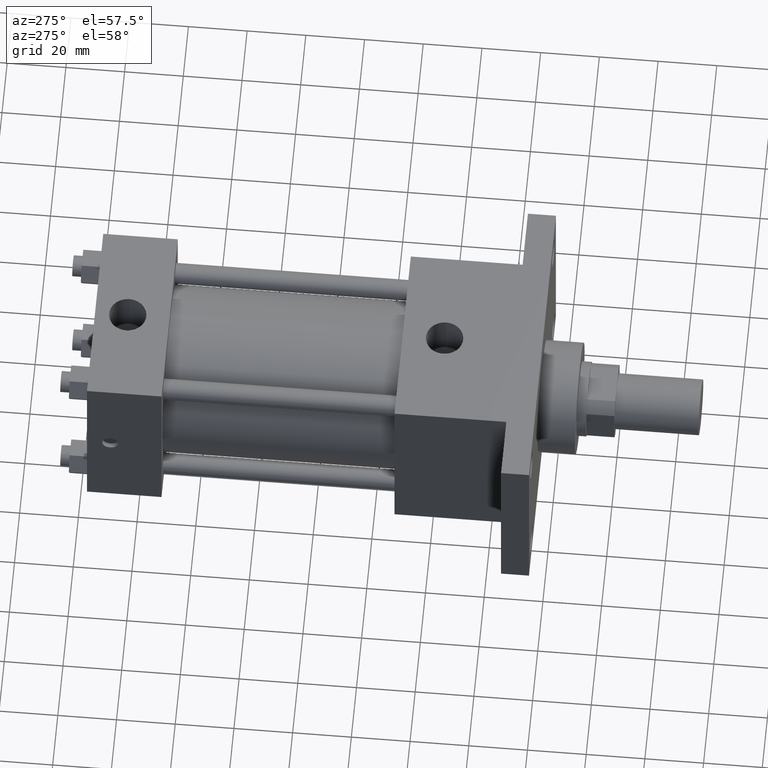
[diagram: clean part render]
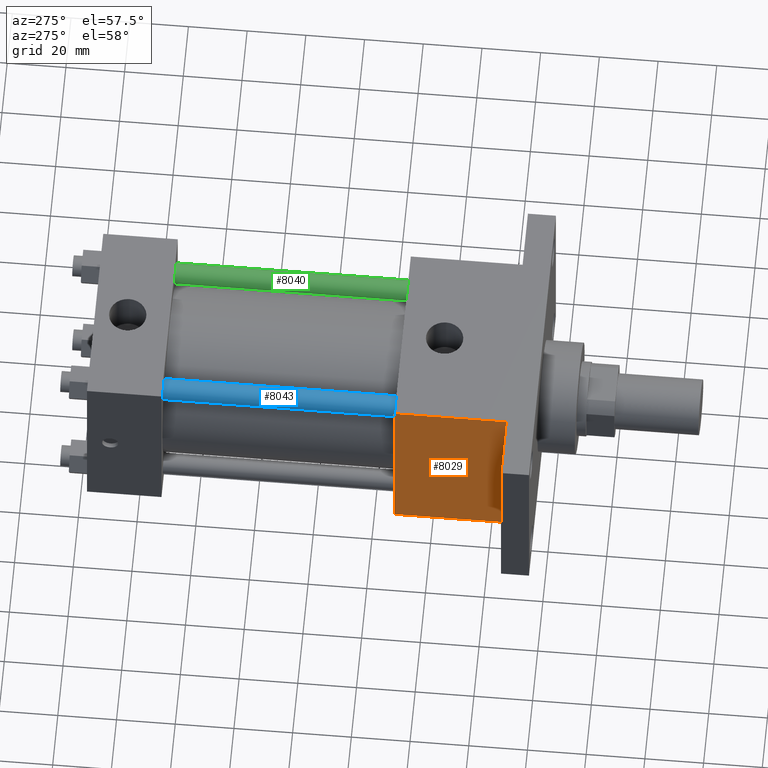
[diagram: same view with three faces highlighted in distinct colors, each labeled with its STEP entity id]
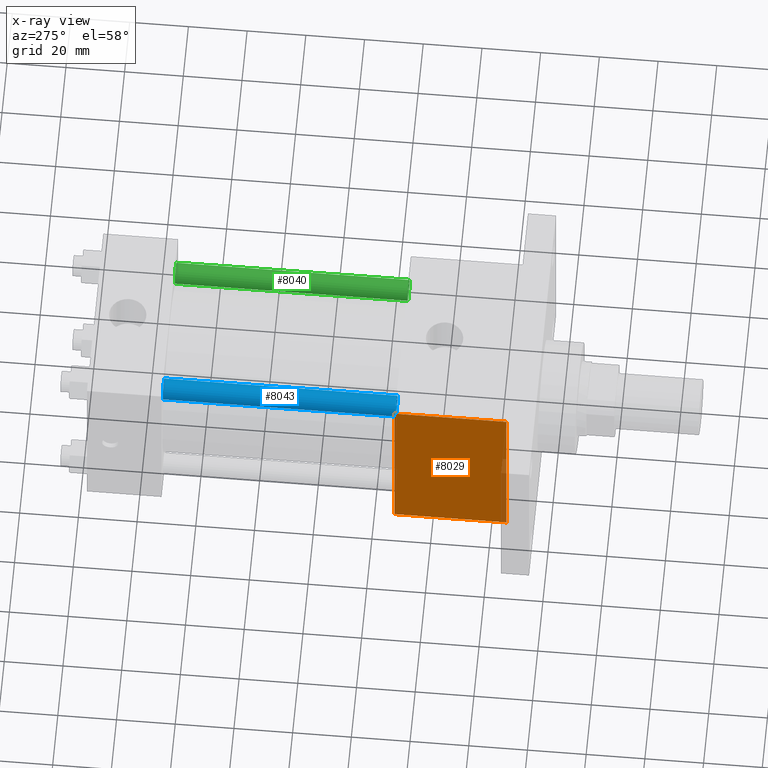
[diagram: x-ray of the same camera — body ghosted, the three highlighted faces saturated]
A machine part, auxiliary view with three faces highlighted in distinct colors.
The next image is the same camera in x-ray (body ghosted, the three faces saturated) — at least one of them is partly hidden behind the body in this view.
Their STEP definitions:

[orange] entity #8029 — the highlighted planar face has unit normal (-1, 0, 0).
#550=VERTEX_POINT('',#551);
#551=CARTESIAN_POINT('',(-3.175000000E+001,3.492500000E+001,-3.175000000E+001));
#552=EDGE_CURVE('',#557,#550,#553,.T.);
#553=LINE('',#554,#555);
#554=CARTESIAN_POINT('',(-3.175000000E+001,7.302500000E+001,-3.175000000E+001));
#555=VECTOR('',#556,1.0E+000);
#556=DIRECTION('',(0.0E+000,-1.0E+000,0.0E+000));
#557=VERTEX_POINT('',#558);
#558=CARTESIAN_POINT('',(-3.175000000E+001,7.302500000E+001,-3.175000000E+001));
#646=VERTEX_POINT('',#647);
#647=CARTESIAN_POINT('',(-3.175000000E+001,7.302500000E+001,3.175000000E+001));
#648=EDGE_CURVE('',#646,#653,#649,.T.);
#649=LINE('',#650,#651);
#650=CARTESIAN_POINT('',(-3.175000000E+001,7.302500000E+001,3.175000000E+001));
#651=VECTOR('',#652,1.0E+000);
#652=DIRECTION('',(0.0E+000,-1.0E+000,0.0E+000));
#653=VERTEX_POINT('',#654);
#654=CARTESIAN_POINT('',(-3.175000000E+001,3.492500000E+001,3.175000000E+001));
#719=EDGE_CURVE('',#653,#550,#720,.T.);
#720=LINE('',#721,#722);
#721=CARTESIAN_POINT('',(-3.175000000E+001,3.492500000E+001,3.175000000E+001));
#722=VECTOR('',#723,1.0E+000);
#723=DIRECTION('',(0.0E+000,0.0E+000,-1.0E+000));
#851=EDGE_CURVE('',#646,#557,#852,.T.);
#852=LINE('',#853,#854);
#853=CARTESIAN_POINT('',(-3.175000000E+001,7.302500000E+001,3.175000000E+001));
#854=VECTOR('',#855,1.0E+000);
#855=DIRECTION('',(0.0E+000,0.0E+000,-1.0E+000));
#902=FACE_OUTER_BOUND('',#904,.T.);
#903=FACE_BOUND('',#905,.T.);
#904=EDGE_LOOP('',(#906,#907,#908,#909));
#905=EDGE_LOOP('',(#910));
#906=ORIENTED_EDGE('',*,*,#851,.T.);
#907=ORIENTED_EDGE('',*,*,#552,.T.);
#908=ORIENTED_EDGE('',*,*,#719,.F.);
#909=ORIENTED_EDGE('',*,*,#648,.F.);
#910=ORIENTED_EDGE('',*,*,#911,.T.);
#911=EDGE_CURVE('',#917,#917,#912,.T.);
#912=CIRCLE('',#913,2.778125000E+000);
#913=AXIS2_PLACEMENT_3D('',#914,#915,#916);
#914=CARTESIAN_POINT('',(-3.175000000E+001,5.397500000E+001,0.000000000E+000));
#915=DIRECTION('',(1.0E+000,0.0E+000,0.0E+000));
#916=DIRECTION('',(0.0E+000,-1.0E+000,0.0E+000));
#917=VERTEX_POINT('',#918);
#918=CARTESIAN_POINT('',(-3.175000000E+001,5.119687500E+001,0.000000000E+000));
#919=PLANE('',#920);
#920=AXIS2_PLACEMENT_3D('',#921,#922,#923);
#921=CARTESIAN_POINT('',(-3.175000000E+001,7.302500000E+001,3.175000000E+001));
#922=DIRECTION('',(-1.0E+000,0.0E+000,0.0E+000));
#923=DIRECTION('',(0.0E+000,0.0E+000,1.0E+000));
#8029=ADVANCED_FACE('',(#902,#903),#919,.T.);

[blue] entity #8043 — the highlighted cylindrical surface (bore or boss wall) has radius 3.5687 mm, axis along (0, -1, 0).
#862=EDGE_CURVE('',#868,#868,#863,.T.);
#863=CIRCLE('',#864,3.568700000E+000);
#864=AXIS2_PLACEMENT_3D('',#865,#866,#867);
#865=CARTESIAN_POINT('',(-2.336800000E+001,7.302500000E+001,2.336800000E+001));
#866=DIRECTION('',(0.0E+000,1.0E+000,0.0E+000));
#867=DIRECTION('',(1.0E+000,0.0E+000,0.0E+000));
#868=VERTEX_POINT('',#869);
#869=CARTESIAN_POINT('',(-1.979930000E+001,7.302500000E+001,2.336800000E+001));
#1130=FACE_OUTER_BOUND('',#1132,.T.);
#1131=FACE_BOUND('',#1133,.T.);
#1132=EDGE_LOOP('',(#1134));
#1133=EDGE_LOOP('',(#1135));
#1134=ORIENTED_EDGE('',*,*,#1189,.F.);
#1135=ORIENTED_EDGE('',*,*,#862,.T.);
#1136=CYLINDRICAL_SURFACE('',#1137,3.568700000E+000);
#1137=AXIS2_PLACEMENT_3D('',#1138,#1139,#1140);
#1138=CARTESIAN_POINT('',(-2.336800000E+001,1.524000000E+002,2.336800000E+001));
#1139=DIRECTION('',(0.0E+000,-1.0E+000,0.0E+000));
#1140=DIRECTION('',(0.0E+000,0.0E+000,-1.0E+000));
#1189=EDGE_CURVE('',#1195,#1195,#1190,.T.);
#1190=CIRCLE('',#1191,3.568700000E+000);
#1191=AXIS2_PLACEMENT_3D('',#1192,#1193,#1194);
#1192=CARTESIAN_POINT('',(-2.336800000E+001,1.524000000E+002,2.336800000E+001));
#1193=DIRECTION('',(0.0E+000,1.0E+000,0.0E+000));
#1194=DIRECTION('',(1.0E+000,0.0E+000,0.0E+000));
#1195=VERTEX_POINT('',#1196);
#1196=CARTESIAN_POINT('',(-1.979930000E+001,1.524000000E+002,2.336800000E+001));
#8043=ADVANCED_FACE('',(#1130,#1131),#1136,.T.);

[green] entity #8040 — the highlighted cylindrical surface (bore or boss wall) has radius 3.5687 mm, axis along (0, 1, 0).
#889=EDGE_CURVE('',#895,#895,#890,.T.);
#890=CIRCLE('',#891,3.568700000E+000);
#891=AXIS2_PLACEMENT_3D('',#892,#893,#894);
#892=CARTESIAN_POINT('',(2.336800000E+001,7.302500000E+001,2.336800000E+001));
#893=DIRECTION('',(0.0E+000,-1.0E+000,0.0E+000));
#894=DIRECTION('',(-1.0E+000,0.0E+000,0.0E+000));
#895=VERTEX_POINT('',#896);
#896=CARTESIAN_POINT('',(1.979930000E+001,7.302500000E+001,2.336800000E+001));
#1097=FACE_OUTER_BOUND('',#1099,.T.);
#1098=FACE_BOUND('',#1100,.T.);
#1099=EDGE_LOOP('',(#1101));
#1100=EDGE_LOOP('',(#1102));
#1101=ORIENTED_EDGE('',*,*,#889,.F.);
#1102=ORIENTED_EDGE('',*,*,#1149,.T.);
#1103=CYLINDRICAL_SURFACE('',#1104,3.568700000E+000);
#1104=AXIS2_PLACEMENT_3D('',#1105,#1106,#1107);
#1105=CARTESIAN_POINT('',(2.336800000E+001,7.302500000E+001,2.336800000E+001));
#1106=DIRECTION('',(0.0E+000,1.0E+000,0.0E+000));
#1107=DIRECTION('',(0.0E+000,0.0E+000,-1.0E+000));
#1149=EDGE_CURVE('',#1155,#1155,#1150,.T.);
#1150=CIRCLE('',#1151,3.568700000E+000);
#1151=AXIS2_PLACEMENT_3D('',#1152,#1153,#1154);
#1152=CARTESIAN_POINT('',(2.336800000E+001,1.524000000E+002,2.336800000E+001));
#1153=DIRECTION('',(0.0E+000,-1.0E+000,0.0E+000));
#1154=DIRECTION('',(-1.0E+000,0.0E+000,0.0E+000));
#1155=VERTEX_POINT('',#1156);
#1156=CARTESIAN_POINT('',(1.979930000E+001,1.524000000E+002,2.336800000E+001));
#8040=ADVANCED_FACE('',(#1097,#1098),#1103,.T.);